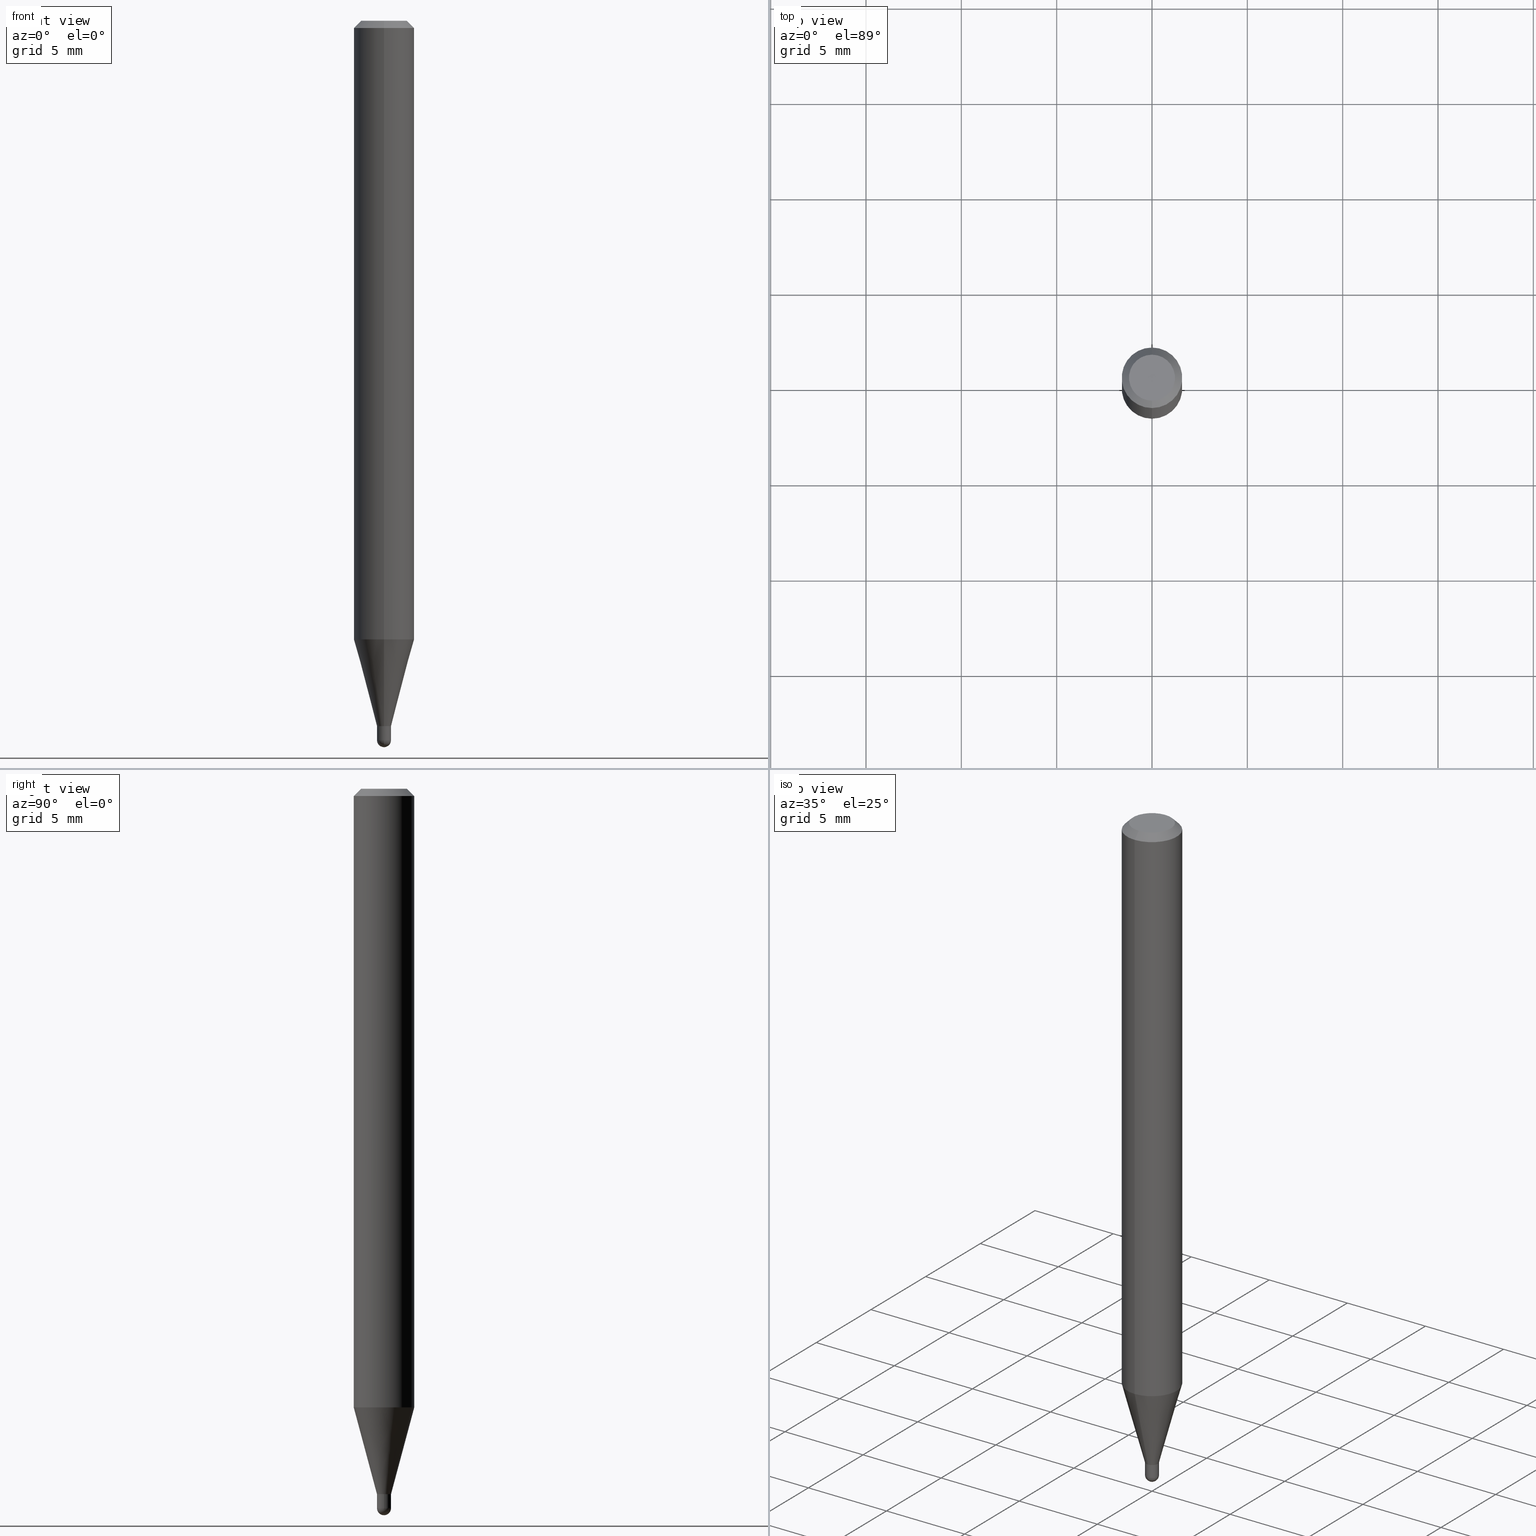
[diagram: canonical four-view strip — front | top / right | iso, engineering-drawing reading convention]
A machine part, canonical four-view strip (front | top / right | iso — engineering-drawing reading convention). The complete STEP part file that produces these views, byte-faithful:
ISO-10303-21;
HEADER;
FILE_DESCRIPTION (( 'STEP AP203' ),
    '1' );
FILE_NAME ('04341.STEP',
    '2024-03-08T18:44:22',
    ( '' ),
    ( '' ),
    'SwSTEP 2.0',
    'SolidWorks 2023',
    '' );
FILE_SCHEMA (( 'CONFIG_CONTROL_DESIGN' ));
ENDSEC;

DATA;
#1 = ORIENTED_EDGE ( 'NONE', *, *, #468, .F. ) ;
#2 = LOCAL_TIME ( 13, 44, 22.00000000000000000, #278 ) ;
#3 = CC_DESIGN_PERSON_AND_ORGANIZATION_ASSIGNMENT ( #235, #314, ( #76 ) ) ;
#4 = APPLICATION_CONTEXT ( 'configuration controlled 3d designs of mechanical parts and assemblies' ) ;
#5 = COORDINATED_UNIVERSAL_TIME_OFFSET ( 5, 0, .BEHIND. ) ;
#6 = EDGE_CURVE ( 'NONE', #166, #412, #307, .T. ) ;
#7 = AXIS2_PLACEMENT_3D ( 'NONE', #159, #312, #469 ) ;
#8 = DIRECTION ( 'NONE',  ( -6.982962677686266711E-15, -1.000000000000000000, 0.000000000000000000 ) ) ;
#9 = DIRECTION ( 'NONE',  ( 6.982962677686265922E-15, 1.000000000000000000, -3.483106191921935554E-15 ) ) ;
#10 = DIRECTION ( 'NONE',  ( -2.445468806185136597E-29, 3.491481338843145583E-15, 1.000000000000000000 ) ) ;
#11 = CARTESIAN_POINT ( 'NONE',  ( 0.01450000000000000074, -1.012529588264508678E-16, 7.070456324904107110E-31 ) ) ;
#12 = CONICAL_SURFACE ( 'NONE', #296, 0.06250000000000000000, 0.7853981633974483900 ) ;
#13 = EDGE_CURVE ( 'NONE', #264, #71, #466, .T. ) ;
#14 = DIRECTION ( 'NONE',  ( -6.982962677686265922E-15, -1.000000000000000000, 0.000000000000000000 ) ) ;
#15 = CIRCLE ( 'NONE', #239, 0.04749999999999999362 ) ;
#16 = AXIS2_PLACEMENT_3D ( 'NONE', #133, #10, #366 ) ;
#17 = EDGE_LOOP ( 'NONE', ( #25, #112, #79, #108 ) ) ;
#18 = DIRECTION ( 'NONE',  ( 7.105427357601001070E-15, 1.000000000000000000, 0.000000000000000000 ) ) ;
#19 = FACE_OUTER_BOUND ( 'NONE', #68, .T. ) ;
#20 = FACE_OUTER_BOUND ( 'NONE', #394, .T. ) ;
#21 = CARTESIAN_POINT ( 'NONE',  ( 3.631503920468710854E-29, -5.188371266710256857E-15, -1.485500000000000043 ) ) ;
#22 = CARTESIAN_POINT ( 'NONE',  ( 3.668195845330792640E-31, -5.237232553855873110E-17, -0.01500000000000006710 ) ) ;
#23 = ADVANCED_FACE ( 'NONE', ( #195 ), #270, .T. ) ;
#24 = CARTESIAN_POINT ( 'NONE',  ( 3.561818165816184954E-29, -5.085352809794032340E-15, -1.456500000000000350 ) ) ;
#25 = ORIENTED_EDGE ( 'NONE', *, *, #376, .F. ) ;
#26 = SPHERICAL_SURFACE ( 'NONE', #55, 0.01450000000000003890 ) ;
#27 = CIRCLE ( 'NONE', #54, 0.06250000000000000000 ) ;
#28 = ORIENTED_EDGE ( 'NONE', *, *, #369, .F. ) ;
#29 =( GEOMETRIC_REPRESENTATION_CONTEXT ( 3 ) GLOBAL_UNCERTAINTY_ASSIGNED_CONTEXT ( ( #305 ) ) GLOBAL_UNIT_ASSIGNED_CONTEXT ( ( #511, #47, #123 ) ) REPRESENTATION_CONTEXT ( 'NONE', 'WORKASPACE' ) );
#30 = CARTESIAN_POINT ( 'NONE',  ( 3.561818165816184393E-29, -5.085352809794031551E-15, -1.456500000000000128 ) ) ;
#31 = ORIENTED_EDGE ( 'NONE', *, *, #332, .F. ) ;
#32 = FACE_OUTER_BOUND ( 'NONE', #185, .T. ) ;
#33 = FACE_OUTER_BOUND ( 'NONE', #329, .T. ) ;
#34 = DIRECTION ( 'NONE',  ( -2.445463896887184035E-29, 3.491488369237233587E-15, 1.000000000000000000 ) ) ;
#35 = CARTESIAN_POINT ( 'NONE',  ( -9.776147748757211540E-17, -0.01400000000000508650, -1.456500000000000350 ) ) ;
#36 = APPROVAL_ROLE ( '' ) ;
#37 = EDGE_CURVE ( 'NONE', #233, #272, #217, .T. ) ;
#38 = VECTOR ( 'NONE', #425, 39.37007874015748143 ) ;
#39 = DIRECTION ( 'NONE',  ( -6.982962677686266711E-15, -1.000000000000000000, 0.000000000000000000 ) ) ;
#40 = DIRECTION ( 'NONE',  ( 1.000000000000000000, -6.982962677686299054E-15, 0.000000000000000000 ) ) ;
#41 = VECTOR ( 'NONE', #294, 39.37007874015748143 ) ;
#42 = EDGE_LOOP ( 'NONE', ( #214, #248, #406, #213 ) ) ;
#43 = CARTESIAN_POINT ( 'NONE',  ( -3.773273898774340269E-16, -0.04749999999999999362, 1.003457974300915395E-16 ) ) ;
#44 = ORIENTED_EDGE ( 'NONE', *, *, #404, .T. ) ;
#45 = DATE_TIME_ROLE ( 'creation_date' ) ;
#46 = EDGE_CURVE ( 'NONE', #474, #178, #365, .T. ) ;
#47 =( NAMED_UNIT ( * ) PLANE_ANGLE_UNIT ( ) SI_UNIT ( $, .RADIAN. ) );
#48 = PRODUCT ( '04341', '04341', '', ( #471 ) ) ;
#49 = PERSON_AND_ORGANIZATION_ROLE ( 'creator' ) ;
#50 = EDGE_CURVE ( 'NONE', #277, #202, #88, .T. ) ;
#51 = DIRECTION ( 'NONE',  ( -2.445463896887184035E-29, 3.491488369237233587E-15, 1.000000000000000000 ) ) ;
#52 = DATE_TIME_ROLE ( 'classification_date' ) ;
#53 = ORIENTED_EDGE ( 'NONE', *, *, #468, .T. ) ;
#54 = AXIS2_PLACEMENT_3D ( 'NONE', #334, #143, #331 ) ;
#55 = AXIS2_PLACEMENT_3D ( 'NONE', #339, #191, #498 ) ;
#56 = ADVANCED_FACE ( 'NONE', ( #20 ), #449, .F. ) ;
#57 = EDGE_LOOP ( 'NONE', ( #1, #122, #355, #357 ) ) ;
#58 = SPHERICAL_SURFACE ( 'NONE', #321, 0.01450000000000003890 ) ;
#59 = DIRECTION ( 'NONE',  ( -6.982962677686265922E-15, -1.000000000000000000, 3.491488369237233587E-15 ) ) ;
#60 = VECTOR ( 'NONE', #399, 39.37007874015748143 ) ;
#61 = DIRECTION ( 'NONE',  ( -2.445463896887183755E-29, 3.491488369237233587E-15, 1.000000000000000000 ) ) ;
#62 = DIRECTION ( 'NONE',  ( -6.982962677686265922E-15, -1.000000000000000000, 0.000000000000000000 ) ) ;
#63 = CC_DESIGN_PERSON_AND_ORGANIZATION_ASSIGNMENT ( #196, #49, ( #249 ) ) ;
#64 = CARTESIAN_POINT ( 'NONE',  ( 4.440892098500937762E-16, 0.06249999999999554523, -1.277361561236700860 ) ) ;
#65 = APPROVAL ( #215, 'UNSPECIFIED' ) ;
#66 = CARTESIAN_POINT ( 'NONE',  ( -1.012529588264146665E-16, -0.01450000000000520838, -1.485500000000000043 ) ) ;
#67 = DIRECTION ( 'NONE',  ( -2.445463896887184035E-29, 3.491488369237233587E-15, 1.000000000000000000 ) ) ;
#68 = EDGE_LOOP ( 'NONE', ( #437, #150, #290, #325 ) ) ;
#69 = ADVANCED_FACE ( 'NONE', ( #136 ), #211, .T. ) ;
#70 = APPLICATION_PROTOCOL_DEFINITION ( 'international standard', 'config_control_design', 1994, #4 ) ;
#71 = VERTEX_POINT ( 'NONE', #420 ) ;
#72 = CARTESIAN_POINT ( 'NONE',  ( 0.000000000000000000, 0.000000000000000000, 0.000000000000000000 ) ) ;
#73 = CALENDAR_DATE ( 2024, 8, 3 ) ;
#74 = ORIENTED_EDGE ( 'NONE', *, *, #376, .T. ) ;
#75 = CIRCLE ( 'NONE', #362, 0.01449999999999965206 ) ;
#76 = PRODUCT_DEFINITION_FORMATION_WITH_SPECIFIED_SOURCE ( 'ANY', '', #48, .NOT_KNOWN. ) ;
#77 = CALENDAR_DATE ( 2024, 8, 3 ) ;
#78 = EDGE_CURVE ( 'NONE', #116, #474, #289, .T. ) ;
#79 = ORIENTED_EDGE ( 'NONE', *, *, #50, .F. ) ;
#80 = ORIENTED_EDGE ( 'NONE', *, *, #168, .F. ) ;
#81 = DIRECTION ( 'NONE',  ( 0.000000000000000000, 0.000000000000000000, 1.000000000000000000 ) ) ;
#82 = LENGTH_MEASURE_WITH_UNIT ( LENGTH_MEASURE( 0.02539999999999999897 ), #508 );
#83 = EDGE_CURVE ( 'NONE', #173, #279, #257, .T. ) ;
#84 = CARTESIAN_POINT ( 'NONE',  ( 0.01450000000000000074, -5.186595528851493784E-15, -1.456500000000000128 ) ) ;
#85 = CARTESIAN_POINT ( 'NONE',  ( 3.560595433867740506E-29, -5.083607065609413510E-15, -1.456000000000000183 ) ) ;
#86 = AXIS2_PLACEMENT_3D ( 'NONE', #24, #386, #345 ) ;
#87 = ORIENTED_EDGE ( 'NONE', *, *, #117, .F. ) ;
#88 = CIRCLE ( 'NONE', #16, 0.01450000000000000074 ) ;
#89 = APPROVAL ( #309, 'UNSPECIFIED' ) ;
#90 = FACE_OUTER_BOUND ( 'NONE', #302, .T. ) ;
#91 = CC_DESIGN_DATE_AND_TIME_ASSIGNMENT ( #243, #52, ( #256 ) ) ;
#92 = CARTESIAN_POINT ( 'NONE',  ( 3.632743911588020939E-29, -5.186595528851492996E-15, -1.485500000000000043 ) ) ;
#93 = ORIENTED_EDGE ( 'NONE', *, *, #326, .T. ) ;
#94 = DIRECTION ( 'NONE',  ( -6.982962677686265922E-15, -1.000000000000000000, 3.491488369237233587E-15 ) ) ;
#95 = EDGE_CURVE ( 'NONE', #207, #285, #447, .T. ) ;
#96 = AXIS2_PLACEMENT_3D ( 'NONE', #216, #363, #8 ) ;
#97 = DIRECTION ( 'NONE',  ( -2.445463896887184035E-29, 3.491488369237233587E-15, 1.000000000000000000 ) ) ;
#98 = DIRECTION ( 'NONE',  ( -1.000000000000000000, 6.982962677686265922E-15, -4.876176775795935793E-29 ) ) ;
#99 = AXIS2_PLACEMENT_3D ( 'NONE', #301, #446, #415 ) ;
#100 = FACE_OUTER_BOUND ( 'NONE', #141, .T. ) ;
#101 = DIRECTION ( 'NONE',  ( -2.445463896887184035E-29, 3.491488369237233587E-15, 1.000000000000000000 ) ) ;
#102 = ORIENTED_EDGE ( 'NONE', *, *, #171, .F. ) ;
#103 = ORIENTED_EDGE ( 'NONE', *, *, #78, .F. ) ;
#104 = LINE ( 'NONE', #300, #358 ) ;
#105 = AXIS2_PLACEMENT_3D ( 'NONE', #30, #254, #227 ) ;
#106 = ADVANCED_FACE ( 'NONE', ( #90 ), #475, .T. ) ;
#107 = AXIS2_PLACEMENT_3D ( 'NONE', #388, #212, #370 ) ;
#108 = ORIENTED_EDGE ( 'NONE', *, *, #404, .F. ) ;
#109 = CYLINDRICAL_SURFACE ( 'NONE', #245, 0.06250000000000000000 ) ;
#110 = ORIENTED_EDGE ( 'NONE', *, *, #95, .T. ) ;
#111 = COORDINATED_UNIVERSAL_TIME_OFFSET ( 5, 0, .BEHIND. ) ;
#112 = ORIENTED_EDGE ( 'NONE', *, *, #209, .T. ) ;
#113 = CARTESIAN_POINT ( 'NONE',  ( 3.632743911588020939E-29, -5.186595528851492996E-15, -1.485500000000000043 ) ) ;
#114 = EDGE_LOOP ( 'NONE', ( #103, #472, #44, #164, #267 ) ) ;
#115 = DIRECTION ( 'NONE',  ( 1.000000000000000000, 0.000000000000000000, 0.000000000000000000 ) ) ;
#116 = VERTEX_POINT ( 'NONE', #416 ) ;
#117 = EDGE_CURVE ( 'NONE', #277, #178, #371, .T. ) ;
#118 = ORIENTED_EDGE ( 'NONE', *, *, #6, .F. ) ;
#119 = AXIS2_PLACEMENT_3D ( 'NONE', #182, #319, #208 ) ;
#120 = ORIENTED_EDGE ( 'NONE', *, *, #78, .T. ) ;
#121 = SECURITY_CLASSIFICATION_LEVEL ( 'unclassified' ) ;
#122 = ORIENTED_EDGE ( 'NONE', *, *, #505, .F. ) ;
#123 =( NAMED_UNIT ( * ) SI_UNIT ( $, .STERADIAN. ) SOLID_ANGLE_UNIT ( ) );
#124 = AXIS2_PLACEMENT_3D ( 'NONE', #138, #324, #485 ) ;
#125 = EDGE_CURVE ( 'NONE', #264, #207, #335, .T. ) ;
#126 = AXIS2_PLACEMENT_3D ( 'NONE', #271, #81, #115 ) ;
#127 = CIRCLE ( 'NONE', #86, 0.01400000000000000203 ) ;
#128 = SHAPE_DEFINITION_REPRESENTATION ( #167, #479 ) ;
#129 = ORIENTED_EDGE ( 'NONE', *, *, #443, .F. ) ;
#130 = EDGE_CURVE ( 'NONE', #202, #116, #238, .T. ) ;
#131 = FACE_OUTER_BOUND ( 'NONE', #316, .T. ) ;
#132 = FACE_OUTER_BOUND ( 'NONE', #392, .T. ) ;
#133 = CARTESIAN_POINT ( 'NONE',  ( 3.632743911588020939E-29, -5.186595528851492996E-15, -1.485500000000000043 ) ) ;
#134 = ORIENTED_EDGE ( 'NONE', *, *, #149, .T. ) ;
#135 = CARTESIAN_POINT ( 'NONE',  ( 3.561818165816184393E-29, -5.085352809794031551E-15, -1.456500000000000128 ) ) ;
#136 = FACE_OUTER_BOUND ( 'NONE', #57, .T. ) ;
#137 = ADVANCED_FACE ( 'NONE', ( #455 ), #109, .T. ) ;
#138 = CARTESIAN_POINT ( 'NONE',  ( 3.561818165816184954E-29, -5.085352809794032340E-15, -1.456500000000000350 ) ) ;
#139 = DIRECTION ( 'NONE',  ( -2.445463896887184035E-29, 3.491488369237233587E-15, 1.000000000000000000 ) ) ;
#140 = DIRECTION ( 'NONE',  ( 2.438088387897960049E-29, -3.491481338843145188E-15, -1.000000000000000000 ) ) ;
#141 = EDGE_LOOP ( 'NONE', ( #389, #120, #102, #87, #231 ) ) ;
#142 = APPROVAL_PERSON_ORGANIZATION ( #322, #65, #372 ) ;
#143 = DIRECTION ( 'NONE',  ( -2.445463896887184035E-29, 3.491488369237233587E-15, 1.000000000000000000 ) ) ;
#144 = FACE_OUTER_BOUND ( 'NONE', #184, .T. ) ;
#145 = ORIENTED_EDGE ( 'NONE', *, *, #83, .T. ) ;
#146 = DIRECTION ( 'NONE',  ( 1.000000000000000000, -6.982962677686299054E-15, 0.000000000000000000 ) ) ;
#147 = DIRECTION ( 'NONE',  ( 1.000000000000000000, -6.982962677686265922E-15, 4.883557194083112340E-29 ) ) ;
#148 = DIRECTION ( 'NONE',  ( -6.982962677686265922E-15, -1.000000000000000000, 0.000000000000000000 ) ) ;
#149 = EDGE_CURVE ( 'NONE', #207, #264, #127, .T. ) ;
#150 = ORIENTED_EDGE ( 'NONE', *, *, #318, .T. ) ;
#151 = CARTESIAN_POINT ( 'NONE',  ( 3.632743911588020939E-29, -5.186595528851492996E-15, -1.485500000000000043 ) ) ;
#152 = VERTEX_POINT ( 'NONE', #158 ) ;
#153 = CARTESIAN_POINT ( 'NONE',  ( 3.316907271900976096E-16, 0.04749999999999999362, -1.985956475931071152E-16 ) ) ;
#154 = CIRCLE ( 'NONE', #219, 0.01450000000000000074 ) ;
#155 = AXIS2_PLACEMENT_3D ( 'NONE', #269, #265, #428 ) ;
#156 = AXIS2_PLACEMENT_3D ( 'NONE', #441, #51, #444 ) ;
#157 = EDGE_LOOP ( 'NONE', ( #411, #74, #80, #193 ) ) ;
#158 = CARTESIAN_POINT ( 'NONE',  ( 3.666343222598740888E-29, -5.239885615052863969E-15, -1.500000000000000222 ) ) ;
#159 = CARTESIAN_POINT ( 'NONE',  ( 0.000000000000000000, 0.000000000000000000, 0.000000000000000000 ) ) ;
#160 = ORIENTED_EDGE ( 'NONE', *, *, #496, .F. ) ;
#161 = APPROVAL ( #395, 'UNSPECIFIED' ) ;
#162 = CARTESIAN_POINT ( 'NONE',  ( 1.030286966852515470E-16, 0.01449999999999511402, -1.456500000000000128 ) ) ;
#163 = DATE_AND_TIME ( #77, #308 ) ;
#164 = ORIENTED_EDGE ( 'NONE', *, *, #117, .T. ) ;
#165 = VECTOR ( 'NONE', #286, 39.37007874015748143 ) ;
#166 = VERTEX_POINT ( 'NONE', #311 ) ;
#167 = PRODUCT_DEFINITION_SHAPE ( 'NONE', 'NONE',  #249 ) ;
#168 = EDGE_CURVE ( 'NONE', #116, #484, #258, .T. ) ;
#169 = CIRCLE ( 'NONE', #156, 0.06250000000000000000 ) ;
#170 = CARTESIAN_POINT ( 'NONE',  ( -4.364351673553605094E-16, -0.06250000000000446865, -1.277361561236700194 ) ) ;
#171 = EDGE_CURVE ( 'NONE', #178, #474, #480, .T. ) ;
#172 = DIRECTION ( 'NONE',  ( 5.024295867785445738E-15, 0.7071067811861817543, 0.7071067811869132802 ) ) ;
#173 = VERTEX_POINT ( 'NONE', #170 ) ;
#174 = DIRECTION ( 'NONE',  ( 2.445463896887184035E-29, -3.491488369237233587E-15, -1.000000000000000000 ) ) ;
#175 = VECTOR ( 'NONE', #172, 39.37007874015748143 ) ;
#176 = AXIS2_PLACEMENT_3D ( 'NONE', #385, #97, #59 ) ;
#177 = CARTESIAN_POINT ( 'NONE',  ( 3.561818165816184954E-29, -5.085352809794032340E-15, -1.456500000000000350 ) ) ;
#178 = VERTEX_POINT ( 'NONE', #84 ) ;
#179 = ORIENTED_EDGE ( 'NONE', *, *, #262, .F. ) ;
#180 = DIRECTION ( 'NONE',  ( -2.445463896887184035E-29, 3.491488369237233587E-15, 1.000000000000000000 ) ) ;
#181 = CARTESIAN_POINT ( 'NONE',  ( 1.601776409654866250E-45, -2.286921394156464237E-31, -6.549990010867702583E-17 ) ) ;
#182 = CARTESIAN_POINT ( 'NONE',  ( 3.561825316208651906E-29, -5.085342570025042633E-15, -1.456500000000000128 ) ) ;
#183 = CARTESIAN_POINT ( 'NONE',  ( 3.561818165816184393E-29, -5.085352809794031551E-15, -1.456500000000000128 ) ) ;
#184 = EDGE_LOOP ( 'NONE', ( #512, #367, #145, #28 ) ) ;
#185 = EDGE_LOOP ( 'NONE', ( #458, #423 ) ) ;
#186 = DIRECTION ( 'NONE',  ( -2.445463896887184035E-29, 3.491488369237233587E-15, 1.000000000000000000 ) ) ;
#187 = AXIS2_PLACEMENT_3D ( 'NONE', #230, #261, #62 ) ;
#188 = DIRECTION ( 'NONE',  ( 6.982962677686265922E-15, 1.000000000000000000, -3.491488369237233587E-15 ) ) ;
#189 = CARTESIAN_POINT ( 'NONE',  ( 0.01450000000000000074, -5.237222008264718177E-15, -1.485500000000000043 ) ) ;
#190 = CC_DESIGN_DATE_AND_TIME_ASSIGNMENT ( #163, #45, ( #249 ) ) ;
#191 = DIRECTION ( 'NONE',  ( 1.000000000000000000, -6.982962677686265922E-15, 4.883557194083112340E-29 ) ) ;
#192 = ORIENTED_EDGE ( 'NONE', *, *, #37, .F. ) ;
#193 = ORIENTED_EDGE ( 'NONE', *, *, #130, .F. ) ;
#194 = DIRECTION ( 'NONE',  ( 2.445463896887183755E-29, -3.491488369237233587E-15, -1.000000000000000000 ) ) ;
#195 = FACE_OUTER_BOUND ( 'NONE', #114, .T. ) ;
#196 = PERSON_AND_ORGANIZATION ( #360, #288 ) ;
#197 = APPROVAL_PERSON_ORGANIZATION ( #407, #161, #36 ) ;
#198 = ADVANCED_FACE ( 'NONE', ( #131 ), #456, .F. ) ;
#199 = AXIS2_PLACEMENT_3D ( 'NONE', #340, #140, #98 ) ;
#200 = DIMENSIONAL_EXPONENTS ( 1.000000000000000000, 0.000000000000000000, 0.000000000000000000, 0.000000000000000000, 0.000000000000000000, 0.000000000000000000, 0.000000000000000000 ) ;
#201 = VERTEX_POINT ( 'NONE', #222 ) ;
#202 = VERTEX_POINT ( 'NONE', #303 ) ;
#203 = PERSON_AND_ORGANIZATION ( #360, #288 ) ;
#204 = APPLICATION_PROTOCOL_DEFINITION ( 'international standard', 'config_control_design', 1994, #246 ) ;
#205 = ADVANCED_FACE ( 'NONE', ( #499 ), #58, .T. ) ;
#206 = COORDINATED_UNIVERSAL_TIME_OFFSET ( 5, 0, .BEHIND. ) ;
#207 = VERTEX_POINT ( 'NONE', #330 ) ;
#208 = DIRECTION ( 'NONE',  ( 1.000000000000000000, -6.982962677686299054E-15, 0.000000000000000000 ) ) ;
#209 = EDGE_CURVE ( 'NONE', #152, #202, #382, .T. ) ;
#210 = CIRCLE ( 'NONE', #494, 0.01450000000000003890 ) ;
#211 = CONICAL_SURFACE ( 'NONE', #276, 0.06250000000000000000, 0.7853981633974483900 ) ;
#212 = DIRECTION ( 'NONE',  ( -2.445468806185136597E-29, 3.491481338843145583E-15, 1.000000000000000000 ) ) ;
#213 = ORIENTED_EDGE ( 'NONE', *, *, #410, .F. ) ;
#214 = ORIENTED_EDGE ( 'NONE', *, *, #262, .T. ) ;
#215 = APPROVAL_STATUS ( 'not_yet_approved' ) ;
#216 = CARTESIAN_POINT ( 'NONE',  ( 3.561818165816184393E-29, -5.085352809794031551E-15, -1.456500000000000128 ) ) ;
#217 = LINE ( 'NONE', #491, #60 ) ;
#218 = EDGE_LOOP ( 'NONE', ( #93, #351, #129, #381 ) ) ;
#219 = AXIS2_PLACEMENT_3D ( 'NONE', #92, #343, #298 ) ;
#220 = FACE_OUTER_BOUND ( 'NONE', #263, .T. ) ;
#221 = CARTESIAN_POINT ( 'NONE',  ( 9.947598300644963777E-17, 0.01399999999999491582, -1.456500000000000350 ) ) ;
#222 = CARTESIAN_POINT ( 'NONE',  ( -1.012529588264166263E-16, -0.01450000000000528470, -1.456500000000000128 ) ) ;
#223 = CARTESIAN_POINT ( 'NONE',  ( -1.012529588264166263E-16, -0.01450000000000528470, -1.456500000000000128 ) ) ;
#224 = PLANE ( 'NONE',  #199 ) ;
#225 = CYLINDRICAL_SURFACE ( 'NONE', #99, 0.01450000000000000074 ) ;
#226 = DIRECTION ( 'NONE',  ( -6.982962677686265922E-15, -1.000000000000000000, 3.491488369237233587E-15 ) ) ;
#227 = DIRECTION ( 'NONE',  ( -6.982962677686266711E-15, -1.000000000000000000, 0.000000000000000000 ) ) ;
#228 = ORIENTED_EDGE ( 'NONE', *, *, #332, .T. ) ;
#229 = AXIS2_PLACEMENT_3D ( 'NONE', #452, #67, #405 ) ;
#230 = CARTESIAN_POINT ( 'NONE',  ( 3.560595433867740506E-29, -5.083607065609413510E-15, -1.456000000000000183 ) ) ;
#231 = ORIENTED_EDGE ( 'NONE', *, *, #50, .T. ) ;
#232 = CYLINDRICAL_SURFACE ( 'NONE', #176, 0.06250000000000000000 ) ;
#233 = VERTEX_POINT ( 'NONE', #488 ) ;
#234 = EDGE_CURVE ( 'NONE', #166, #201, #463, .T. ) ;
#235 = PERSON_AND_ORGANIZATION ( #360, #288 ) ;
#236 = FACE_OUTER_BOUND ( 'NONE', #42, .T. ) ;
#237 = PERSON_AND_ORGANIZATION ( #360, #288 ) ;
#238 = CIRCLE ( 'NONE', #346, 0.01450000000000000074 ) ;
#239 = AXIS2_PLACEMENT_3D ( 'NONE', #181, #139, #295 ) ;
#240 = ORIENTED_EDGE ( 'NONE', *, *, #13, .T. ) ;
#241 = APPROVAL_DATE_TIME ( #429, #89 ) ;
#242 = DIRECTION ( 'NONE',  ( 1.839019923739649619E-15, 0.2588190451025318972, 0.9659258262890650926 ) ) ;
#243 = DATE_AND_TIME ( #436, #2 ) ;
#244 = DATE_AND_TIME ( #73, #427 ) ;
#245 = AXIS2_PLACEMENT_3D ( 'NONE', #72, #34, #226 ) ;
#246 = APPLICATION_CONTEXT ( 'configuration controlled 3d designs of mechanical parts and assemblies' ) ;
#247 = DIRECTION ( 'NONE',  ( -2.445463896887184035E-29, 3.491488369237233587E-15, 1.000000000000000000 ) ) ;
#248 = ORIENTED_EDGE ( 'NONE', *, *, #6, .T. ) ;
#249 = PRODUCT_DEFINITION ( 'UNKNOWN', '', #76, #409 ) ;
#250 = VECTOR ( 'NONE', #378, 39.37007874015748854 ) ;
#251 = VECTOR ( 'NONE', #242, 39.37007874015748854 ) ;
#252 = ADVANCED_FACE ( 'NONE', ( #100 ), #225, .T. ) ;
#253 = CARTESIAN_POINT ( 'NONE',  ( -0.01450000000000000074, 1.030286966852145322E-16, -7.132455880869613131E-31 ) ) ;
#254 = DIRECTION ( 'NONE',  ( -2.445463896887184035E-29, 3.491488369237233587E-15, 1.000000000000000000 ) ) ;
#255 = AXIS2_PLACEMENT_3D ( 'NONE', #268, #180, #39 ) ;
#256 = SECURITY_CLASSIFICATION ( '', '', #121 ) ;
#257 = LINE ( 'NONE', #377, #165 ) ;
#258 = CIRCLE ( 'NONE', #453, 0.01450000000000000074 ) ;
#259 = DIRECTION ( 'NONE',  ( -6.982962677686265922E-15, -1.000000000000000000, 0.000000000000000000 ) ) ;
#260 = CARTESIAN_POINT ( 'NONE',  ( 1.030286966852473069E-16, 0.01449999999999452074, -1.456000000000000183 ) ) ;
#261 = DIRECTION ( 'NONE',  ( -2.445463896887184035E-29, 3.491488369237233587E-15, 1.000000000000000000 ) ) ;
#262 = EDGE_CURVE ( 'NONE', #201, #166, #403, .T. ) ;
#263 = EDGE_LOOP ( 'NONE', ( #118, #478, #337, #509 ) ) ;
#264 = VERTEX_POINT ( 'NONE', #299 ) ;
#265 = DIRECTION ( 'NONE',  ( -2.445463896887184035E-29, 3.491488369237233587E-15, 1.000000000000000000 ) ) ;
#266 = CARTESIAN_POINT ( 'NONE',  ( 4.440892098500625669E-16, 0.06250000000000000000, -2.182180230773270992E-16 ) ) ;
#267 = ORIENTED_EDGE ( 'NONE', *, *, #46, .F. ) ;
#268 = CARTESIAN_POINT ( 'NONE',  ( 3.561818165816184393E-29, -5.085352809794031551E-15, -1.456500000000000128 ) ) ;
#269 = CARTESIAN_POINT ( 'NONE',  ( 0.000000000000000000, 0.000000000000000000, 0.000000000000000000 ) ) ;
#270 = CYLINDRICAL_SURFACE ( 'NONE', #7, 0.01450000000000000074 ) ;
#271 = CARTESIAN_POINT ( 'NONE',  ( 0.000000000000000000, 0.000000000000000000, 0.000000000000000000 ) ) ;
#272 = VERTEX_POINT ( 'NONE', #391 ) ;
#273 = AXIS2_PLACEMENT_3D ( 'NONE', #504, #489, #422 ) ;
#274 = CC_DESIGN_APPROVAL ( #89, ( #76 ) ) ;
#275 = ORIENTED_EDGE ( 'NONE', *, *, #430, .T. ) ;
#276 = AXIS2_PLACEMENT_3D ( 'NONE', #417, #174, #9 ) ;
#277 = VERTEX_POINT ( 'NONE', #189 ) ;
#278 = COORDINATED_UNIVERSAL_TIME_OFFSET ( 5, 0, .BEHIND. ) ;
#279 = VERTEX_POINT ( 'NONE', #490 ) ;
#280 = VECTOR ( 'NONE', #247, 39.37007874015748143 ) ;
#281 = MANIFOLD_SOLID_BREP ( 'Body-Move/Copy2[2]', #454 ) ;
#282 = AXIS2_PLACEMENT_3D ( 'NONE', #153, #194, #188 ) ;
#283 = ADVANCED_FACE ( 'NONE', ( #33 ), #224, .F. ) ;
#284 = APPROVAL_DATE_TIME ( #442, #65 ) ;
#285 = VERTEX_POINT ( 'NONE', #260 ) ;
#286 = DIRECTION ( 'NONE',  ( -2.445463896887184035E-29, 3.491488369237233587E-15, 1.000000000000000000 ) ) ;
#287 = CARTESIAN_POINT ( 'NONE',  ( 3.561818165816184954E-29, -5.085352809794032340E-15, -1.456500000000000350 ) ) ;
#288 = ORGANIZATION ( 'UNSPECIFIED', 'UNSPECIFIED', '' ) ;
#289 = LINE ( 'NONE', #253, #433 ) ;
#290 = ORIENTED_EDGE ( 'NONE', *, *, #354, .T. ) ;
#291 = EDGE_CURVE ( 'NONE', #412, #272, #461, .T. ) ;
#292 = DIRECTION ( 'NONE',  ( -2.445463896887184035E-29, 3.491488369237233587E-15, 1.000000000000000000 ) ) ;
#293 = ORIENTED_EDGE ( 'NONE', *, *, #149, .F. ) ;
#294 = DIRECTION ( 'NONE',  ( -2.445468806185136877E-29, 3.491481338843145188E-15, 1.000000000000000000 ) ) ;
#295 = DIRECTION ( 'NONE',  ( -6.982962677686266711E-15, -1.000000000000000000, 3.491488369237234376E-15 ) ) ;
#296 = AXIS2_PLACEMENT_3D ( 'NONE', #22, #317, #353 ) ;
#297 = ADVANCED_FACE ( 'NONE', ( #379 ), #12, .T. ) ;
#298 = DIRECTION ( 'NONE',  ( 1.000000000000000000, -6.982962677686299054E-15, 0.000000000000000000 ) ) ;
#299 = CARTESIAN_POINT ( 'NONE',  ( -9.776147748757211540E-17, -0.01400000000000508650, -1.456500000000000350 ) ) ;
#300 = CARTESIAN_POINT ( 'NONE',  ( -4.287811248607203282E-16, -0.06250000000000005551, -0.01499999999999984852 ) ) ;
#301 = CARTESIAN_POINT ( 'NONE',  ( 0.000000000000000000, 0.000000000000000000, 0.000000000000000000 ) ) ;
#302 = EDGE_LOOP ( 'NONE', ( #313, #134, #240, #352 ) ) ;
#303 = CARTESIAN_POINT ( 'NONE',  ( 1.030286966852509923E-16, 0.01449999999999483126, -1.485500000000000043 ) ) ;
#304 = LINE ( 'NONE', #457, #350 ) ;
#305 = UNCERTAINTY_MEASURE_WITH_UNIT (LENGTH_MEASURE( 1.000000000000000082E-05 ), #511, 'distance_accuracy_value', 'NONE');
#306 = AXIS2_PLACEMENT_3D ( 'NONE', #287, #390, #148 ) ;
#307 = LINE ( 'NONE', #162, #251 ) ;
#308 = LOCAL_TIME ( 13, 44, 22.00000000000000000, #432 ) ;
#309 = APPROVAL_STATUS ( 'not_yet_approved' ) ;
#310 = ADVANCED_FACE ( 'NONE', ( #236 ), #398, .T. ) ;
#311 = CARTESIAN_POINT ( 'NONE',  ( 2.735589532676728342E-16, 0.01449999999999511402, -1.456500000000000128 ) ) ;
#312 = DIRECTION ( 'NONE',  ( -2.445468806185136597E-29, 3.491481338843145583E-15, 1.000000000000000000 ) ) ;
#313 = ORIENTED_EDGE ( 'NONE', *, *, #95, .F. ) ;
#314 = PERSON_AND_ORGANIZATION_ROLE ( 'creator' ) ;
#315 = LOCAL_TIME ( 13, 44, 22.00000000000000000, #111 ) ;
#316 = EDGE_LOOP ( 'NONE', ( #503, #179, #275, #228 ) ) ;
#317 = DIRECTION ( 'NONE',  ( 2.445463896887184035E-29, -3.491488369237233587E-15, -1.000000000000000000 ) ) ;
#318 = EDGE_CURVE ( 'NONE', #166, #285, #323, .T. ) ;
#319 = DIRECTION ( 'NONE',  ( -2.445468806185136597E-29, 3.491481338843145583E-15, 1.000000000000000000 ) ) ;
#320 = AXIS2_PLACEMENT_3D ( 'NONE', #338, #497, #384 ) ;
#321 = AXIS2_PLACEMENT_3D ( 'NONE', #373, #147, #14 ) ;
#322 = PERSON_AND_ORGANIZATION ( #360, #288 ) ;
#323 = LINE ( 'NONE', #328, #280 ) ;
#324 = DIRECTION ( 'NONE',  ( -2.445463896887184035E-29, 3.491488369237233587E-15, 1.000000000000000000 ) ) ;
#325 = ORIENTED_EDGE ( 'NONE', *, *, #430, .F. ) ;
#326 = EDGE_CURVE ( 'NONE', #173, #412, #169, .T. ) ;
#327 = CC_DESIGN_SECURITY_CLASSIFICATION ( #256, ( #76 ) ) ;
#328 = CARTESIAN_POINT ( 'NONE',  ( 1.030286966852139898E-16, 0.01449999999999992614, -5.062658135393963054E-17 ) ) ;
#329 = EDGE_LOOP ( 'NONE', ( #435, #396 ) ) ;
#330 = CARTESIAN_POINT ( 'NONE',  ( 1.012523398458484723E-16, 0.01399999999999491582, -1.456500000000000350 ) ) ;
#331 = DIRECTION ( 'NONE',  ( -6.982962677686265922E-15, -1.000000000000000000, 3.483106191921935554E-15 ) ) ;
#332 = EDGE_CURVE ( 'NONE', #71, #285, #75, .T. ) ;
#333 = DIRECTION ( 'NONE',  ( -2.445468806185136877E-29, 3.491481338843145188E-15, 1.000000000000000000 ) ) ;
#334 = CARTESIAN_POINT ( 'NONE',  ( 3.668195845330792640E-31, -5.237232553855873110E-17, -0.01500000000000006710 ) ) ;
#335 = CIRCLE ( 'NONE', #507, 0.01400000000000000203 ) ;
#336 = CC_DESIGN_PERSON_AND_ORGANIZATION_ASSIGNMENT ( #510, #356, ( #256 ) ) ;
#337 = ORIENTED_EDGE ( 'NONE', *, *, #410, .T. ) ;
#338 = CARTESIAN_POINT ( 'NONE',  ( 0.000000000000000000, 0.000000000000000000, 0.000000000000000000 ) ) ;
#339 = CARTESIAN_POINT ( 'NONE',  ( 3.631503920468710854E-29, -5.188371266710256857E-15, -1.485500000000000043 ) ) ;
#340 = CARTESIAN_POINT ( 'NONE',  ( 1.012529588264864775E-16, 0.01449999999999491453, -1.456500000000000128 ) ) ;
#341 = CARTESIAN_POINT ( 'NONE',  ( 3.668195845330792640E-31, -5.237232553855873110E-17, -0.01500000000000006710 ) ) ;
#342 = ORIENTED_EDGE ( 'NONE', *, *, #13, .F. ) ;
#343 = DIRECTION ( 'NONE',  ( -2.445468806185136597E-29, 3.491481338843145583E-15, 1.000000000000000000 ) ) ;
#344 = ADVANCED_FACE ( 'NONE', ( #132 ), #431, .T. ) ;
#345 = DIRECTION ( 'NONE',  ( -6.982962677686265922E-15, -1.000000000000000000, 0.000000000000000000 ) ) ;
#346 = AXIS2_PLACEMENT_3D ( 'NONE', #151, #393, #146 ) ;
#347 = DIRECTION ( 'NONE',  ( -4.937700262161976356E-15, -0.7071067811861768693, 0.7071067811869181652 ) ) ;
#348 = CIRCLE ( 'NONE', #229, 0.04749999999999999362 ) ;
#349 = CALENDAR_DATE ( 2024, 8, 3 ) ;
#350 = VECTOR ( 'NONE', #101, 39.37007874015748143 ) ;
#351 = ORIENTED_EDGE ( 'NONE', *, *, #291, .T. ) ;
#352 = ORIENTED_EDGE ( 'NONE', *, *, #354, .F. ) ;
#353 = DIRECTION ( 'NONE',  ( 6.982962677686265922E-15, 1.000000000000000000, -3.483106191921935554E-15 ) ) ;
#354 = EDGE_CURVE ( 'NONE', #285, #71, #374, .T. ) ;
#355 = ORIENTED_EDGE ( 'NONE', *, *, #37, .T. ) ;
#356 = PERSON_AND_ORGANIZATION_ROLE ( 'classification_officer' ) ;
#357 = ORIENTED_EDGE ( 'NONE', *, *, #369, .T. ) ;
#358 = VECTOR ( 'NONE', #500, 39.37007874015748143 ) ;
#359 = PERSON_AND_ORGANIZATION ( #360, #288 ) ;
#360 = PERSON ( 'UNSPECIFIED', 'UNSPECIFIED', 'UNSPECIFIED', ('UNSPECIFIED'), ('UNSPECIFIED'), ('UNSPECIFIED') ) ;
#361 = DIRECTION ( 'NONE',  ( -6.982962677686265922E-15, -1.000000000000000000, 0.000000000000000000 ) ) ;
#362 = AXIS2_PLACEMENT_3D ( 'NONE', #85, #368, #361 ) ;
#363 = DIRECTION ( 'NONE',  ( -2.445463896887184035E-29, 3.491488369237233587E-15, 1.000000000000000000 ) ) ;
#364 = AXIS2_PLACEMENT_3D ( 'NONE', #341, #421, #380 ) ;
#365 = CIRCLE ( 'NONE', #107, 0.01450000000000000074 ) ;
#366 = DIRECTION ( 'NONE',  ( 1.000000000000000000, -6.982962677686299054E-15, 0.000000000000000000 ) ) ;
#367 = ORIENTED_EDGE ( 'NONE', *, *, #387, .T. ) ;
#368 = DIRECTION ( 'NONE',  ( -2.445463896887184035E-29, 3.491488369237233587E-15, 1.000000000000000000 ) ) ;
#369 = EDGE_CURVE ( 'NONE', #272, #279, #27, .T. ) ;
#370 = DIRECTION ( 'NONE',  ( 1.000000000000000000, -6.982962677686299054E-15, 0.000000000000000000 ) ) ;
#371 = LINE ( 'NONE', #11, #41 ) ;
#372 = APPROVAL_ROLE ( '' ) ;
#373 = CARTESIAN_POINT ( 'NONE',  ( 3.631503920468710854E-29, -5.188371266710256857E-15, -1.485500000000000043 ) ) ;
#374 = CIRCLE ( 'NONE', #187, 0.01449999999999965206 ) ;
#375 = CARTESIAN_POINT ( 'NONE',  ( 3.631503920468710854E-29, -5.188371266710256857E-15, -1.485500000000000043 ) ) ;
#376 = EDGE_CURVE ( 'NONE', #152, #484, #210, .T. ) ;
#377 = CARTESIAN_POINT ( 'NONE',  ( -4.364351673553916201E-16, -0.06250000000000000000, 2.182180230773270992E-16 ) ) ;
#378 = DIRECTION ( 'NONE',  ( -1.807323732225379049E-15, -0.2588190451025252359, 0.9659258262890670910 ) ) ;
#379 = FACE_OUTER_BOUND ( 'NONE', #434, .T. ) ;
#380 = DIRECTION ( 'NONE',  ( -6.982962677686265922E-15, -1.000000000000000000, 3.483106191921935554E-15 ) ) ;
#381 = ORIENTED_EDGE ( 'NONE', *, *, #83, .F. ) ;
#382 = CIRCLE ( 'NONE', #483, 0.01450000000000003890 ) ;
#383 = AXIS2_PLACEMENT_3D ( 'NONE', #183, #61, #94 ) ;
#384 = DIRECTION ( 'NONE',  ( -6.982962677686265922E-15, -1.000000000000000000, 3.491488369237233587E-15 ) ) ;
#385 = CARTESIAN_POINT ( 'NONE',  ( 0.000000000000000000, 0.000000000000000000, 0.000000000000000000 ) ) ;
#386 = DIRECTION ( 'NONE',  ( -2.445463896887184035E-29, 3.491488369237233587E-15, 1.000000000000000000 ) ) ;
#387 = EDGE_CURVE ( 'NONE', #412, #173, #440, .T. ) ;
#388 = CARTESIAN_POINT ( 'NONE',  ( 3.561825316208651906E-29, -5.085342570025042633E-15, -1.456500000000000128 ) ) ;
#389 = ORIENTED_EDGE ( 'NONE', *, *, #130, .T. ) ;
#390 = DIRECTION ( 'NONE',  ( -2.445463896887184035E-29, 3.491488369237233587E-15, 1.000000000000000000 ) ) ;
#391 = CARTESIAN_POINT ( 'NONE',  ( 4.440892098500940720E-16, 0.06249999999999995143, -0.01500000000000028394 ) ) ;
#392 = EDGE_LOOP ( 'NONE', ( #501, #110, #31, #342 ) ) ;
#393 = DIRECTION ( 'NONE',  ( -2.445468806185136597E-29, 3.491481338843145583E-15, 1.000000000000000000 ) ) ;
#394 = EDGE_LOOP ( 'NONE', ( #470, #293 ) ) ;
#395 = APPROVAL_STATUS ( 'not_yet_approved' ) ;
#396 = ORIENTED_EDGE ( 'NONE', *, *, #46, .T. ) ;
#397 = DIRECTION ( 'NONE',  ( -2.445468806185136597E-29, 3.491481338843145583E-15, 1.000000000000000000 ) ) ;
#398 = CONICAL_SURFACE ( 'NONE', #96, 0.01450000000000019849, 0.2617993877991575125 ) ;
#399 = DIRECTION ( 'NONE',  ( 4.937700262164548042E-15, 0.7071067811865451302, -0.7071067811865499042 ) ) ;
#400 = ORIENTED_EDGE ( 'NONE', *, *, #443, .T. ) ;
#401 = CIRCLE ( 'NONE', #364, 0.06250000000000000000 ) ;
#402 = PERSON_AND_ORGANIZATION_ROLE ( 'design_owner' ) ;
#403 = CIRCLE ( 'NONE', #445, 0.01450000000000019849 ) ;
#404 = EDGE_CURVE ( 'NONE', #484, #277, #154, .T. ) ;
#405 = DIRECTION ( 'NONE',  ( -6.982962677686266711E-15, -1.000000000000000000, 3.491488369237234376E-15 ) ) ;
#406 = ORIENTED_EDGE ( 'NONE', *, *, #326, .F. ) ;
#407 = PERSON_AND_ORGANIZATION ( #360, #288 ) ;
#408 = APPROVAL_DATE_TIME ( #244, #161 ) ;
#409 = DESIGN_CONTEXT ( 'detailed design', #4, 'design' ) ;
#410 = EDGE_CURVE ( 'NONE', #201, #173, #450, .T. ) ;
#411 = ORIENTED_EDGE ( 'NONE', *, *, #209, .F. ) ;
#412 = VERTEX_POINT ( 'NONE', #64 ) ;
#413 = CC_DESIGN_APPROVAL ( #65, ( #256 ) ) ;
#414 = CC_DESIGN_PERSON_AND_ORGANIZATION_ASSIGNMENT ( #359, #402, ( #48 ) ) ;
#415 = DIRECTION ( 'NONE',  ( 1.000000000000000000, -6.982962677686266711E-15, 4.876176775795935793E-29 ) ) ;
#416 = CARTESIAN_POINT ( 'NONE',  ( -0.01450000000000000074, -5.032940352753054379E-15, -1.485500000000000043 ) ) ;
#417 = CARTESIAN_POINT ( 'NONE',  ( 3.668195845330792640E-31, -5.237232553855873110E-17, -0.01500000000000006710 ) ) ;
#418 = ADVANCED_FACE ( 'NONE', ( #32 ), #493, .F. ) ;
#419 = FACE_OUTER_BOUND ( 'NONE', #157, .T. ) ;
#420 = CARTESIAN_POINT ( 'NONE',  ( -1.012529588264131750E-16, -0.01450000000000478510, -1.456000000000000183 ) ) ;
#421 = DIRECTION ( 'NONE',  ( -2.445463896887184035E-29, 3.491488369237233587E-15, 1.000000000000000000 ) ) ;
#422 = DIRECTION ( 'NONE',  ( -6.982962677686265922E-15, -1.000000000000000000, 4.370956789862821150E-15 ) ) ;
#423 = ORIENTED_EDGE ( 'NONE', *, *, #496, .T. ) ;
#424 = DIRECTION ( 'NONE',  ( -1.000000000000000000, 6.982962677686265922E-15, -4.883557194083112340E-29 ) ) ;
#425 = DIRECTION ( 'NONE',  ( -2.445463896887184035E-29, 3.491488369237233587E-15, 1.000000000000000000 ) ) ;
#426 = CC_DESIGN_PERSON_AND_ORGANIZATION_ASSIGNMENT ( #237, #476, ( #76 ) ) ;
#427 = LOCAL_TIME ( 13, 44, 22.00000000000000000, #5 ) ;
#428 = DIRECTION ( 'NONE',  ( -6.982962677686265922E-15, -1.000000000000000000, 3.491488369237233587E-15 ) ) ;
#429 = DATE_AND_TIME ( #349, #315 ) ;
#430 = EDGE_CURVE ( 'NONE', #201, #71, #304, .T. ) ;
#431 = CONICAL_SURFACE ( 'NONE', #306, 0.01400000000000000203, 0.7853981633969275844 ) ;
#432 = COORDINATED_UNIVERSAL_TIME_OFFSET ( 5, 0, .BEHIND. ) ;
#433 = VECTOR ( 'NONE', #333, 39.37007874015748143 ) ;
#434 = EDGE_LOOP ( 'NONE', ( #160, #53, #400, #192 ) ) ;
#435 = ORIENTED_EDGE ( 'NONE', *, *, #171, .T. ) ;
#436 = CALENDAR_DATE ( 2024, 8, 3 ) ;
#437 = ORIENTED_EDGE ( 'NONE', *, *, #234, .F. ) ;
#438 = ADVANCED_FACE ( 'NONE', ( #144 ), #232, .T. ) ;
#439 = CC_DESIGN_APPROVAL ( #161, ( #249 ) ) ;
#440 = CIRCLE ( 'NONE', #273, 0.06250000000000000000 ) ;
#441 = CARTESIAN_POINT ( 'NONE',  ( 3.123741581275799299E-29, -4.459893034368653541E-15, -1.277361561236700638 ) ) ;
#442 = DATE_AND_TIME ( #481, #464 ) ;
#443 = EDGE_CURVE ( 'NONE', #279, #272, #401, .T. ) ;
#444 = DIRECTION ( 'NONE',  ( -6.982962677686265922E-15, -1.000000000000000000, 4.370956789862821150E-15 ) ) ;
#445 = AXIS2_PLACEMENT_3D ( 'NONE', #135, #292, #448 ) ;
#446 = DIRECTION ( 'NONE',  ( -2.445468806185136597E-29, 3.491481338843145583E-15, 1.000000000000000000 ) ) ;
#447 = LINE ( 'NONE', #221, #175 ) ;
#448 = DIRECTION ( 'NONE',  ( -6.982962677686266711E-15, -1.000000000000000000, 0.000000000000000000 ) ) ;
#449 = PLANE ( 'NONE',  #383 ) ;
#450 = LINE ( 'NONE', #223, #250 ) ;
#451 = ADVANCED_FACE ( 'NONE', ( #220 ), #495, .T. ) ;
#452 = CARTESIAN_POINT ( 'NONE',  ( 1.601776409654866250E-45, -2.286921394156464237E-31, -6.549990010867702583E-17 ) ) ;
#453 = AXIS2_PLACEMENT_3D ( 'NONE', #113, #397, #40 ) ;
#454 = CLOSED_SHELL ( 'NONE', ( #487, #344, #297, #137, #310, #451, #438, #69, #418, #56, #106, #198 ) ) ;
#455 = FACE_OUTER_BOUND ( 'NONE', #218, .T. ) ;
#456 = CYLINDRICAL_SURFACE ( 'NONE', #320, 0.01449999999999992614 ) ;
#457 = CARTESIAN_POINT ( 'NONE',  ( -1.012529588264503378E-16, -0.01449999999999992614, 5.062658135393963054E-17 ) ) ;
#458 = ORIENTED_EDGE ( 'NONE', *, *, #505, .T. ) ;
#459 = CARTESIAN_POINT ( 'NONE',  ( -0.01450000000000000074, -5.032940352753054379E-15, -1.456500000000000128 ) ) ;
#460 = ADVANCED_FACE ( 'NONE', ( #419 ), #26, .T. ) ;
#461 = LINE ( 'NONE', #266, #38 ) ;
#462 = CYLINDRICAL_SURFACE ( 'NONE', #155, 0.01449999999999992614 ) ;
#463 = CIRCLE ( 'NONE', #255, 0.01450000000000019849 ) ;
#464 = LOCAL_TIME ( 13, 44, 22.00000000000000000, #206 ) ;
#465 = VECTOR ( 'NONE', #347, 39.37007874015748143 ) ;
#466 = LINE ( 'NONE', #35, #465 ) ;
#467 = APPROVAL_ROLE ( '' ) ;
#468 = EDGE_CURVE ( 'NONE', #506, #279, #104, .T. ) ;
#469 = DIRECTION ( 'NONE',  ( 1.000000000000000000, -6.982962677686266711E-15, 4.876176775795935793E-29 ) ) ;
#470 = ORIENTED_EDGE ( 'NONE', *, *, #125, .F. ) ;
#471 = MECHANICAL_CONTEXT ( 'NONE', #246, 'mechanical' ) ;
#472 = ORIENTED_EDGE ( 'NONE', *, *, #168, .T. ) ;
#473 = MANIFOLD_SOLID_BREP ( 'Body-Move/Copy2[1]', #477 ) ;
#474 = VERTEX_POINT ( 'NONE', #459 ) ;
#475 = CONICAL_SURFACE ( 'NONE', #124, 0.01400000000000000203, 0.7853981633969275844 ) ;
#476 = PERSON_AND_ORGANIZATION_ROLE ( 'design_supplier' ) ;
#477 = CLOSED_SHELL ( 'NONE', ( #252, #205, #283, #460, #23 ) ) ;
#478 = ORIENTED_EDGE ( 'NONE', *, *, #234, .T. ) ;
#479 = ADVANCED_BREP_SHAPE_REPRESENTATION ( '04341', ( #473, #281, #126 ), #29 ) ;
#480 = CIRCLE ( 'NONE', #119, 0.01450000000000000074 ) ;
#481 = CALENDAR_DATE ( 2024, 8, 3 ) ;
#482 = APPROVAL_PERSON_ORGANIZATION ( #203, #89, #467 ) ;
#483 = AXIS2_PLACEMENT_3D ( 'NONE', #375, #486, #18 ) ;
#484 = VERTEX_POINT ( 'NONE', #66 ) ;
#485 = DIRECTION ( 'NONE',  ( -6.982962677686265922E-15, -1.000000000000000000, 0.000000000000000000 ) ) ;
#486 = DIRECTION ( 'NONE',  ( 1.000000000000000000, -7.105427357601001070E-15, 4.926315508542082329E-29 ) ) ;
#487 = ADVANCED_FACE ( 'NONE', ( #19 ), #462, .F. ) ;
#488 = CARTESIAN_POINT ( 'NONE',  ( 3.840629472727447874E-16, 0.04749999999999999362, -2.313455976474456035E-16 ) ) ;
#489 = DIRECTION ( 'NONE',  ( -2.445463896887184035E-29, 3.491488369237233587E-15, 1.000000000000000000 ) ) ;
#490 = CARTESIAN_POINT ( 'NONE',  ( -4.364351673553912750E-16, -0.06250000000000005551, -0.01499999999999984852 ) ) ;
#491 = CARTESIAN_POINT ( 'NONE',  ( 4.364351673553919652E-16, 0.06249999999999995143, -0.01500000000000028394 ) ) ;
#492 = PRODUCT_RELATED_PRODUCT_CATEGORY ( 'detail', '', ( #48 ) ) ;
#493 = PLANE ( 'NONE',  #282 ) ;
#494 = AXIS2_PLACEMENT_3D ( 'NONE', #21, #424, #259 ) ;
#495 = CONICAL_SURFACE ( 'NONE', #105, 0.01450000000000019849, 0.2617993877991575125 ) ;
#496 = EDGE_CURVE ( 'NONE', #506, #233, #15, .T. ) ;
#497 = DIRECTION ( 'NONE',  ( -2.445463896887184035E-29, 3.491488369237233587E-15, 1.000000000000000000 ) ) ;
#498 = DIRECTION ( 'NONE',  ( -6.982962677686265922E-15, -1.000000000000000000, 0.000000000000000000 ) ) ;
#499 = FACE_OUTER_BOUND ( 'NONE', #17, .T. ) ;
#500 = DIRECTION ( 'NONE',  ( -4.851104656540964275E-15, -0.7071067811865500152, -0.7071067811865450192 ) ) ;
#501 = ORIENTED_EDGE ( 'NONE', *, *, #125, .T. ) ;
#502 = DIRECTION ( 'NONE',  ( -6.982962677686265922E-15, -1.000000000000000000, 0.000000000000000000 ) ) ;
#503 = ORIENTED_EDGE ( 'NONE', *, *, #318, .F. ) ;
#504 = CARTESIAN_POINT ( 'NONE',  ( 3.123741581275799299E-29, -4.459893034368653541E-15, -1.277361561236700638 ) ) ;
#505 = EDGE_CURVE ( 'NONE', #233, #506, #348, .T. ) ;
#506 = VERTEX_POINT ( 'NONE', #43 ) ;
#507 = AXIS2_PLACEMENT_3D ( 'NONE', #177, #186, #502 ) ;
#508 =( LENGTH_UNIT ( ) NAMED_UNIT ( * ) SI_UNIT ( $, .METRE. ) );
#509 = ORIENTED_EDGE ( 'NONE', *, *, #387, .F. ) ;
#510 = PERSON_AND_ORGANIZATION ( #360, #288 ) ;
#511 =( CONVERSION_BASED_UNIT ( 'INCH', #82 ) LENGTH_UNIT ( ) NAMED_UNIT ( #200 ) );
#512 = ORIENTED_EDGE ( 'NONE', *, *, #291, .F. ) ;
ENDSEC;
END-ISO-10303-21;
